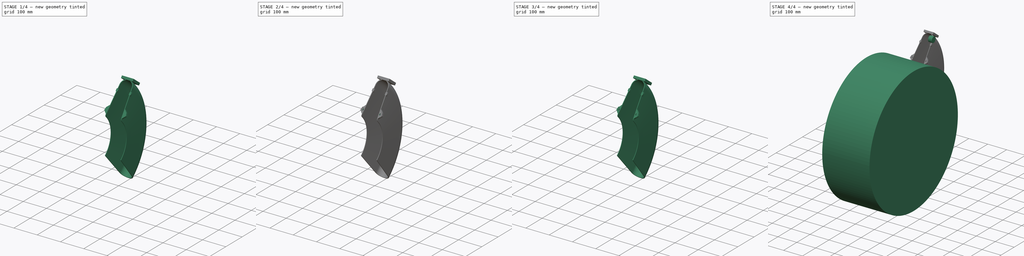
[diagram: build sequence overview — one tinted view per stage of 4, left to right]
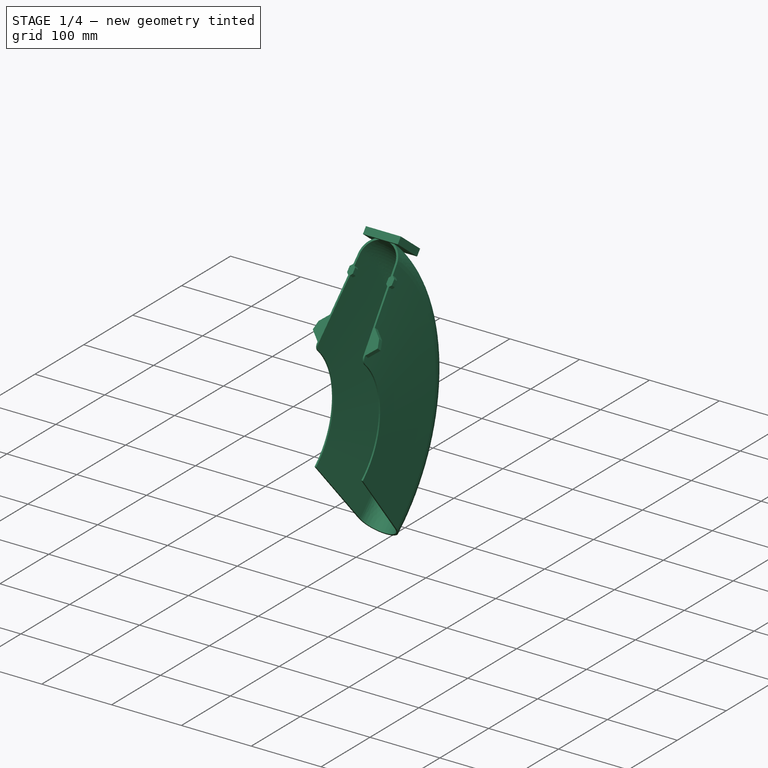
[diagram: stage 1 of 4 — iso view after this stage's code; geometry added in this stage tinted green]
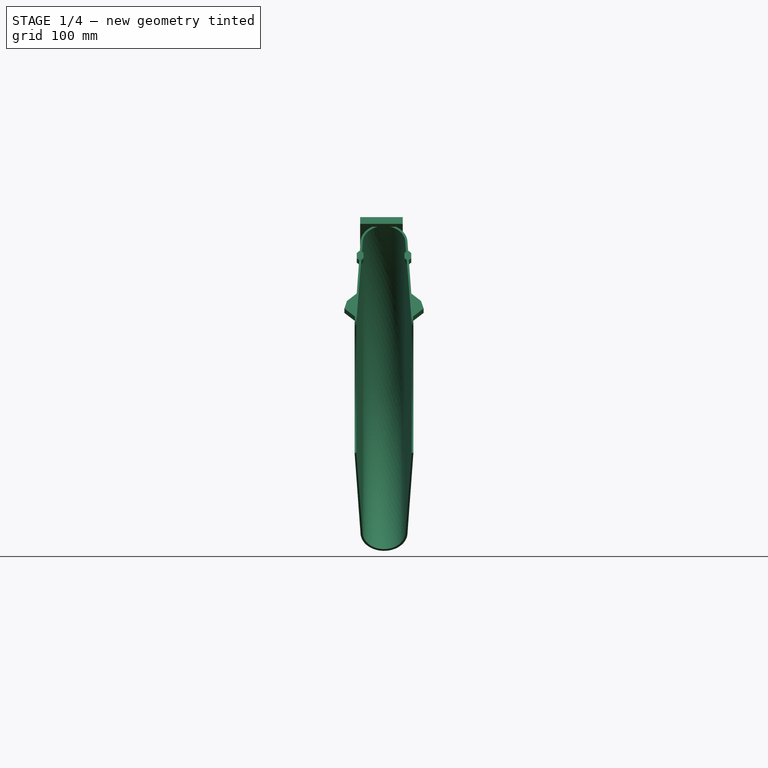
[diagram: stage 1 of 4 — front view after this stage's code; geometry added in this stage tinted green]
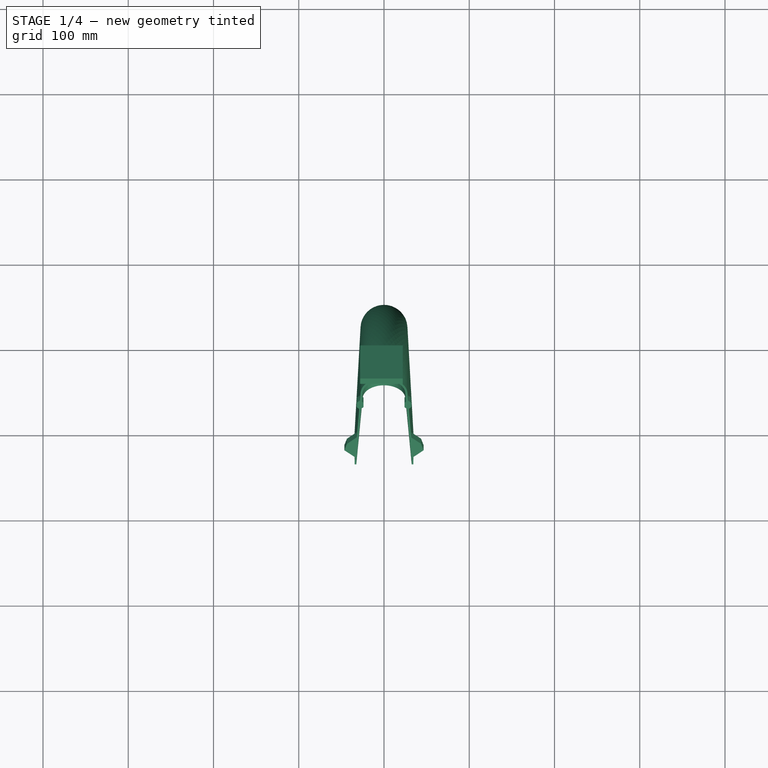
[diagram: stage 1 of 4 — top view after this stage's code; geometry added in this stage tinted green]
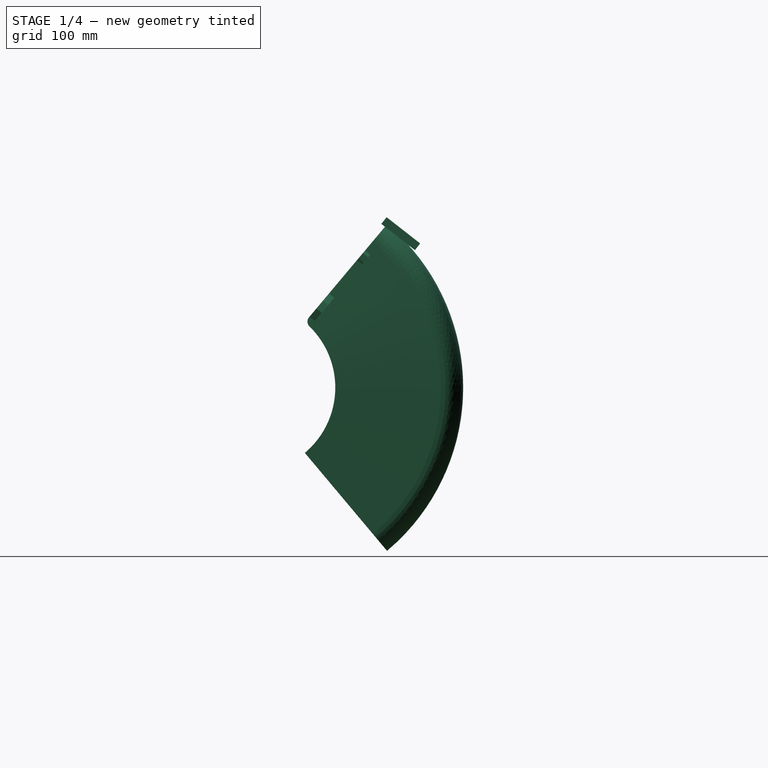
[diagram: stage 1 of 4 — right view after this stage's code; geometry added in this stage tinted green]
FCSTD DOCUMENT  (FreeCAD 0.19R)
Label: Mudguard5
License: All rights reserved
LicenseURL: http://en.wikipedia.org/wiki/All_rights_reserved
objects: Sketcher::SketchObject×6, PartDesign::Fillet×3, PartDesign::Pocket×3, PartDesign::Chamfer×3, Part::Cylinder×2, PartDesign::Revolution×1, PartDesign::ShapeBinder×1, PartDesign::Pad×1, PartDesign::Body×1, Part::Box×1
note: 33 computed .brp shape members not serialized (recipe doc carries the construction recipe); baked Part::Feature solids carry a one-line shape summary decoded from their .brp

FEATURE [Sketcher::SketchObject] Sketch
  FullyConstrained = true
  MapMode = 5
  Support = -> [XY_Plane]
  sketch-geometry (9):
    g0: LineSegment StartX=-38.02 StartY=250 StartZ=0 EndX=36.46 EndY=250 EndZ=0
    g1: ArcOfCircle CenterX=1e-16 CenterY=222.456 CenterZ=0 NormalX=0 NormalY=0 NormalZ=1 AngleXU=0 Radius=27.5438 StartAngle=0.0563879 EndAngle=3.0852
    g2: ArcOfCircle CenterX=0 CenterY=222.257 CenterZ=0 NormalX=0 NormalY=0 NormalZ=1 AngleXU=0 Radius=25.0571 StartAngle=0.0604304 EndAngle=3.08116
    g3: LineSegment StartX=-34.5 StartY=100 StartZ=0 EndX=-27.5 EndY=224.009 EndZ=0
    g4: LineSegment StartX=-32.5 StartY=100 StartZ=0 EndX=-25.0114 EndY=223.77 EndZ=0
    g5: LineSegment StartX=25.0114 StartY=223.77 StartZ=0 EndX=32.5 EndY=100 EndZ=0
    g6: LineSegment StartX=-34.5 StartY=100 StartZ=0 EndX=-32.5 EndY=100 EndZ=0
    g7: LineSegment StartX=32.5 StartY=100 StartZ=0 EndX=34.5 EndY=100 EndZ=0
    g8: LineSegment StartX=34.5 StartY=100 StartZ=0 EndX=27.5 EndY=224.009 EndZ=0
  constraints (24):
    c: Horizontal(g0)
    c: DistanceY(g0) = 250
    c: Tangent(g1,g0)
    c: Symmetric(g1,g1,g-2)
    c: Distance(g0) = 74.48
    c: DistanceX(g0) = 36.46
    c: Tangent(g3,g1) = 1.5708
    c: Coincident(g6,g3)
    c: Coincident(g6,g4)
    c: Distance(g6) = 2
    c: Tangent(g4,g2) = 1.5708
    c: Tangent(g5,g2) = 1.5708
    c: PointOnObject(g2,g-2)
    c: Coincident(g5,g7)
    c: Coincident(g7,g8)
    c: Coincident(g8,g1)
    c: Symmetric(g5,g4,g-2)
    c: Symmetric(g7,g3,g-2)
    c: Horizontal(g7)
    c: Distance(g5,g4) = 65
    c: DistanceY(g7) = 100
    c: Distance(g1,g1) = 55
    c: Distance(g2,g1) = 2.5
    c: DistanceY(g2) = 223.77
FEATURE [PartDesign::Revolution] Revolution
  Angle = 100
  Axis = (1,0,0)
  Base = (0,0,0)
  Midplane = true
  Profile = -> Sketch
  ReferenceAxis = -> Sketch [H_Axis]
FEATURE [PartDesign::ShapeBinder] CopyFusion
  Placement = pos=(0,0,0) rot=(1,0,0;0.785398rad)
  TraceSupport = false
FEATURE [PartDesign::Fillet] Fillet
  Base = -> Revolution [Edge7,Edge19]
  BaseFeature = -> Revolution
  Radius = 8
  SupportTransform = false
FEATURE [PartDesign::Pad] Pad
  BaseFeature = -> Fillet
  Direction = (1,1,1)
  Length = 8
  Length2 = 100
  Profile = -> Sketch002
  Reversed = true
  Type = 0
FEATURE [PartDesign::Body] Body
  Group = -> [Sketch,Revolution,CopyFusion,Fillet,Sketch002,Sketch003,Sketch004,Pad,Pocket,Chamfer,Sketch005,Pocket001,Sketch006,Pocket002,Fillet001,Fillet002,Chamfer001,Chamfer002]
  Origin = -> Origin
  Tip = -> Chamfer002
FEATURE [Part::Box] Box  label="Cube"
  AttacherType = Attacher::AttachEngine3D
  Height = 10
  Length = 50
  Placement = pos=(-28,154,192) rot=(1,0,0;-0.663225rad)
  Width = 50
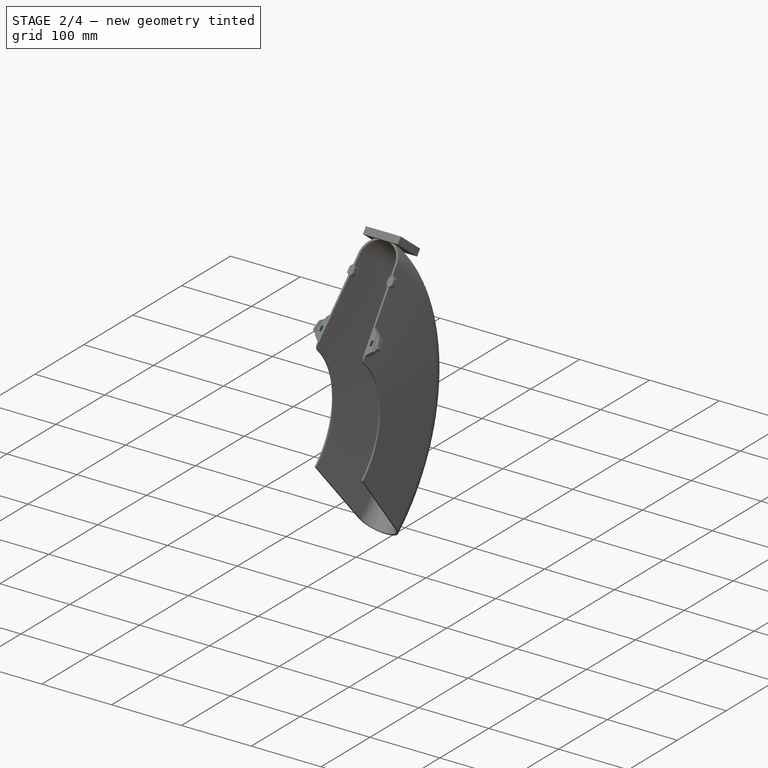
[diagram: stage 2 of 4 — iso view after this stage's code; geometry added in this stage tinted green]
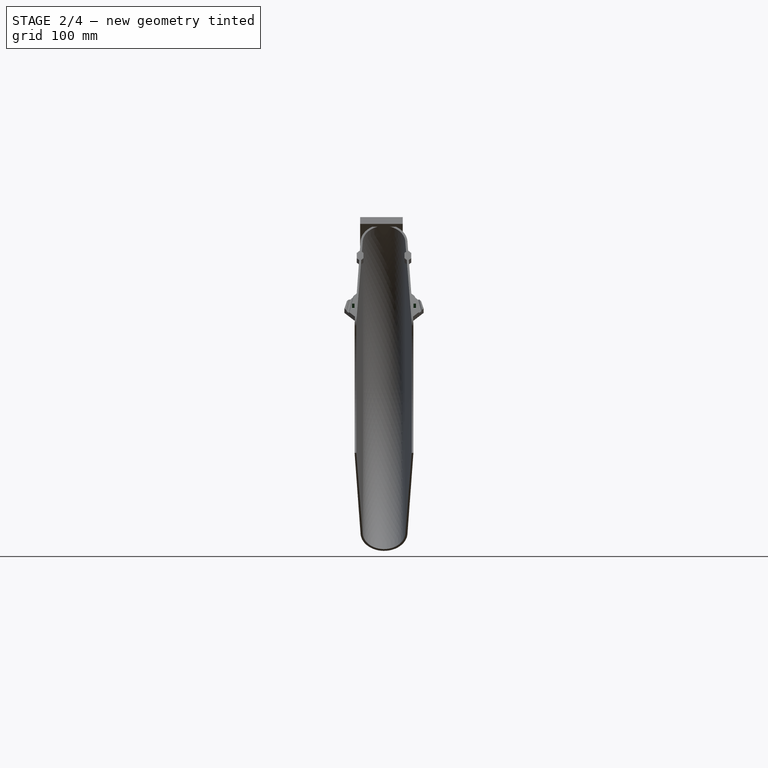
[diagram: stage 2 of 4 — front view after this stage's code; geometry added in this stage tinted green]
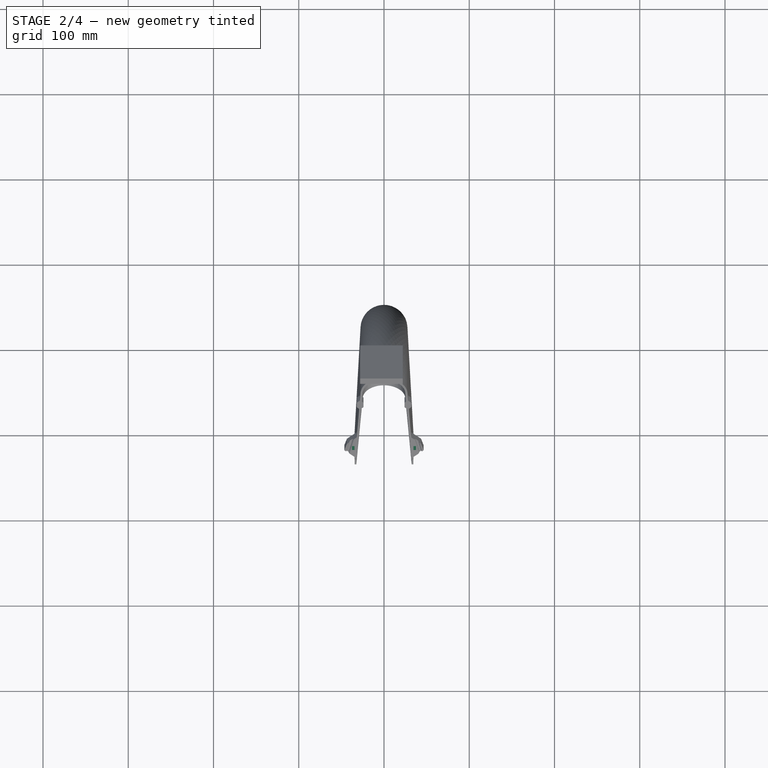
[diagram: stage 2 of 4 — top view after this stage's code; geometry added in this stage tinted green]
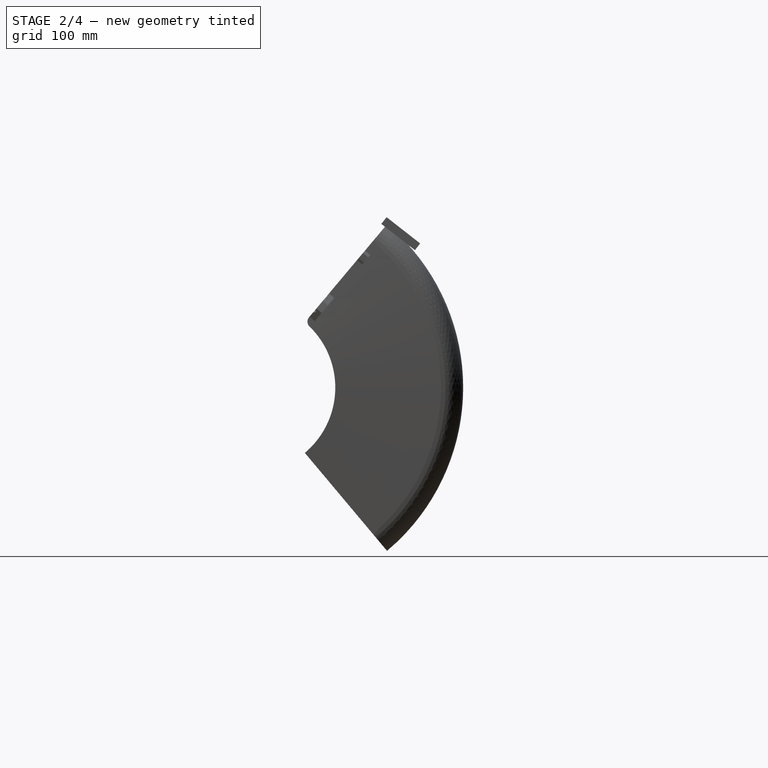
[diagram: stage 2 of 4 — right view after this stage's code; geometry added in this stage tinted green]
FEATURE [Sketcher::SketchObject] Sketch003
  FullyConstrained = true
  MapMode = 5
  Placement = pos=(0,-4.35e-14,3.65e-14) rot=(1,0,0;0.872665rad)
  Support = -> [Pad]
  sketch-geometry (8):
    g0: LineSegment StartX=35 StartY=146.87 StartZ=0 EndX=45 EndY=97.88 EndZ=0
    g1: LineSegment StartX=45 StartY=97.88 StartZ=0 EndX=47.9394 EndY=98.48 EndZ=0
    g2: LineSegment StartX=47.9394 StartY=98.48 StartZ=0 EndX=37.9394 EndY=147.47 EndZ=0
    g3: LineSegment StartX=37.9394 StartY=147.47 StartZ=0 EndX=35 EndY=146.87 EndZ=0
    g4: LineSegment StartX=-47.9394 StartY=98.48 StartZ=0 EndX=-45 EndY=97.88 EndZ=0
    g5: LineSegment StartX=-45 StartY=97.88 StartZ=0 EndX=-35 EndY=146.87 EndZ=0
    g6: LineSegment StartX=-47.9394 StartY=98.48 StartZ=0 EndX=-37.9394 EndY=147.47 EndZ=0
    g7: LineSegment StartX=-37.9394 StartY=147.47 StartZ=0 EndX=-35 EndY=146.87 EndZ=0
  constraints (22):
    c: Coincident(g0,g1)
    c: Coincident(g1,g2)
    c: Coincident(g2,g3)
    c: Coincident(g3,g0)
    c: Coincident(g4,g5)
    c: Equal(g1,g3)
    c: Equal(g0,g2)
    c: Symmetric(g4,g0,g-2)
    c: Perpendicular(g0,g1)
    c: Distance(g3) = 3
    c: Distance(g0,g4) = 90
    c: Coincident(g4,g6)
    c: Coincident(g6,g7)
    c: Coincident(g7,g5)
    c: Equal(g7,g3)
    c: Equal(g6,g5)
    c: Perpendicular(g6,g7)
    c: Symmetric(g0,g5,g-2)
    c: Distance(g2) = 50
    c: Equal(g4,g7)
    c: DistanceY(g0) = 97.88
    c: Distance(g5,g0) = 70
FEATURE [PartDesign::Pocket] Pocket
  BaseFeature = -> Pad
  Length = 2
  Length2 = 100
  Profile = -> Sketch003
  Type = 0
FEATURE [PartDesign::Chamfer] Chamfer
  Angle = 45
  Base = -> Pocket [Edge139,Edge101,Edge142,Edge145]
  BaseFeature = -> Pocket
  ChamferType = 0
  FlipDirection = false
  Size = 1
  Size2 = 1
  SupportTransform = false
FEATURE [Sketcher::SketchObject] Sketch005
  FullyConstrained = false
  MapMode = 5
  Placement = pos=(-3.5e-15,6.12836,-5.1423) rot=(0,0.906308,0.422618;3.14159rad)
  Support = -> [Chamfer]
  sketch-geometry (8):
    g0: LineSegment StartX=-37.5477 StartY=128.579 StartZ=0 EndX=-34.5477 EndY=128.579 EndZ=0
    g1: LineSegment StartX=-34.5477 StartY=128.579 StartZ=0 EndX=-34.5477 EndY=121.579 EndZ=0
    g2: LineSegment StartX=-34.5477 StartY=121.579 StartZ=0 EndX=-37.5477 EndY=121.579 EndZ=0
    g3: LineSegment StartX=-37.5477 StartY=121.579 StartZ=0 EndX=-37.5477 EndY=128.579 EndZ=0
    g4: LineSegment StartX=34.5477 StartY=128.579 StartZ=0 EndX=37.5477 EndY=128.579 EndZ=0
    g5: LineSegment StartX=37.5477 StartY=128.579 StartZ=0 EndX=37.5477 EndY=121.579 EndZ=0
    g6: LineSegment StartX=37.5477 StartY=121.579 StartZ=0 EndX=34.5477 EndY=121.579 EndZ=0
    g7: LineSegment StartX=34.5477 StartY=121.579 StartZ=0 EndX=34.5477 EndY=128.579 EndZ=0
  constraints (21):
    c: Coincident(g0,g1)
    c: Coincident(g1,g2)
    c: Coincident(g2,g3)
    c: Coincident(g3,g0)
    c: Horizontal(g0)
    c: Horizontal(g2)
    c: Vertical(g1)
    c: Vertical(g3)
    c: Coincident(g4,g5)
    c: Coincident(g5,g6)
    c: Coincident(g6,g7)
    c: Coincident(g7,g4)
    c: Horizontal(g4)
    c: Horizontal(g6)
    c: Vertical(g5)
    c: Vertical(g7)
    c: Distance(g4) = 3
    c: Distance(g5) = 7
    c: Equal(g4,g0)
    c: Symmetric(g0,g4,g-2)
    c: Equal(g1,g5)
FEATURE [PartDesign::Pocket] Pocket001
  BaseFeature = -> Chamfer
  Length = 5
  Length2 = 100
  Profile = -> Sketch005
  Type = 1
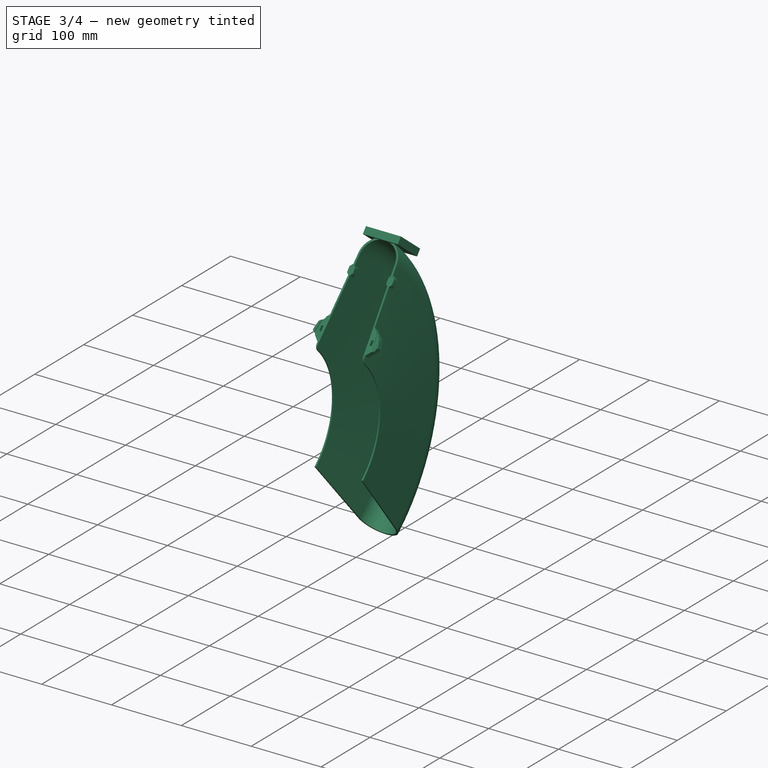
[diagram: stage 3 of 4 — iso view after this stage's code; geometry added in this stage tinted green]
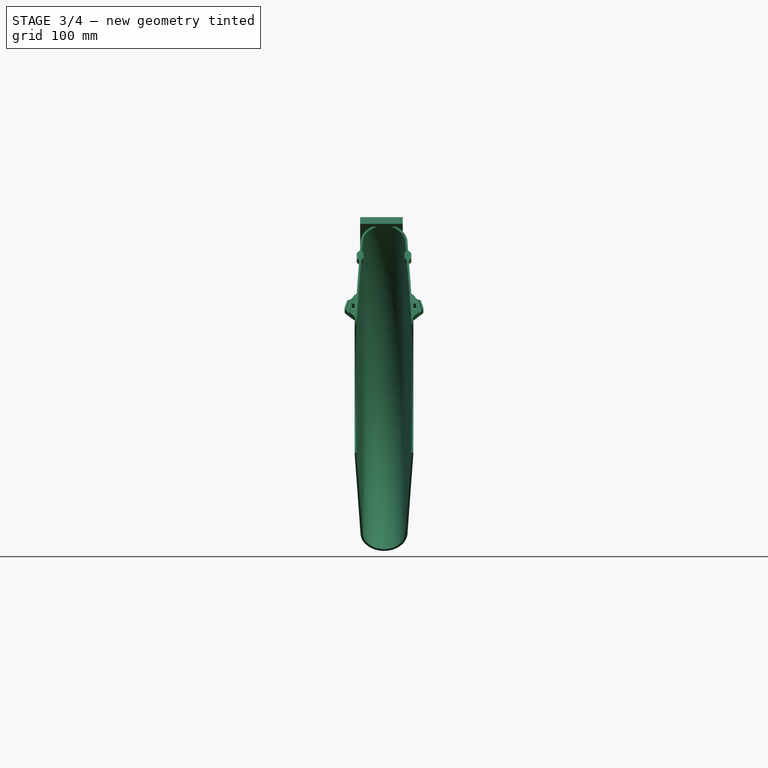
[diagram: stage 3 of 4 — front view after this stage's code; geometry added in this stage tinted green]
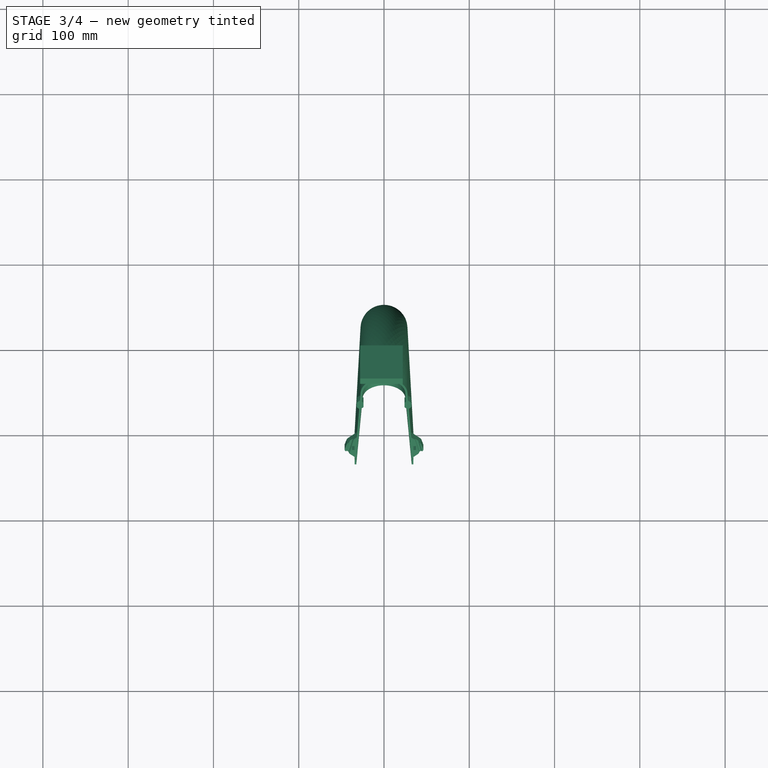
[diagram: stage 3 of 4 — top view after this stage's code; geometry added in this stage tinted green]
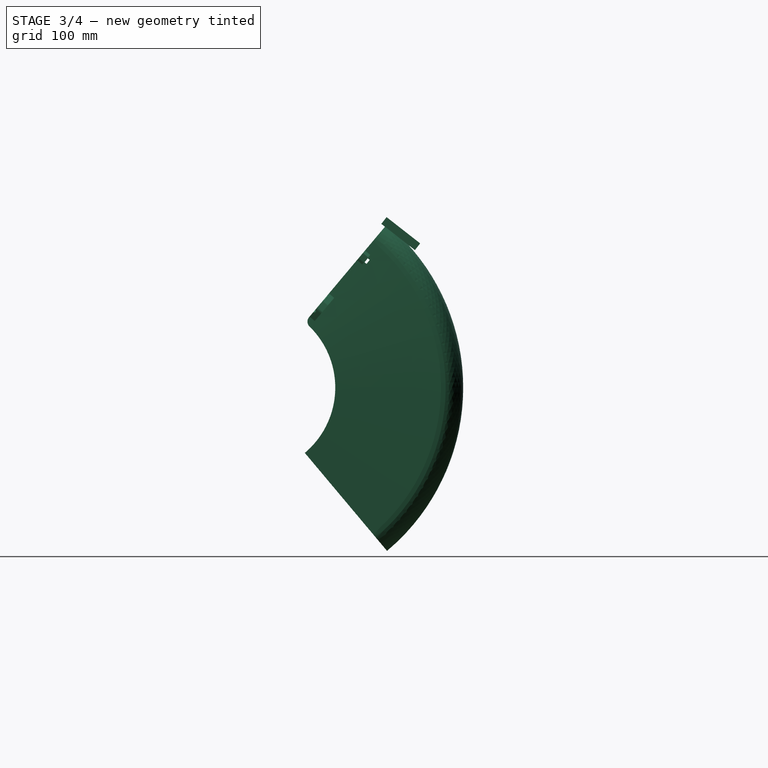
[diagram: stage 3 of 4 — right view after this stage's code; geometry added in this stage tinted green]
FEATURE [Sketcher::SketchObject] Sketch006
  FullyConstrained = false
  MapMode = 5
  Placement = pos=(-32,0,0) rot=(0.57735,-0.57735,-0.57735;2.0944rad)
  Support = -> [Pocket001]
  sketch-geometry (4):
    g0: LineSegment StartX=-140.408 StartY=149.728 StartZ=0 EndX=-136.658 EndY=145.045 EndZ=0
    g1: LineSegment StartX=-136.658 StartY=145.045 StartZ=0 EndX=-134.316 EndY=146.92 EndZ=0
    g2: LineSegment StartX=-134.316 StartY=146.92 StartZ=0 EndX=-138.067 EndY=151.603 EndZ=0
    g3: LineSegment StartX=-138.067 StartY=151.603 StartZ=0 EndX=-140.408 EndY=149.728 EndZ=0
  constraints (9):
    c: Coincident(g0,g1)
    c: Coincident(g1,g2)
    c: Coincident(g2,g3)
    c: Coincident(g3,g0)
    c: Equal(g1,g3)
    c: Perpendicular(g1,g0)
    c: Equal(g2,g0)
    c: Distance(g2) = 6
    c: Distance(g3) = 3
FEATURE [PartDesign::Pocket] Pocket002
  BaseFeature = -> Pocket001
  Length = 5
  Length2 = 100
  Profile = -> Sketch006
  Type = 1
FEATURE [PartDesign::Fillet] Fillet001
  Base = -> Pocket002 [Edge46,Edge7,Edge169,Edge149]
  BaseFeature = -> Pocket002
  Radius = 3
  SupportTransform = false
FEATURE [PartDesign::Fillet] Fillet002
  Base = -> Fillet001 [Edge92,Edge96,Edge184,Edge171]
  BaseFeature = -> Fillet001
  Radius = 1
  SupportTransform = false
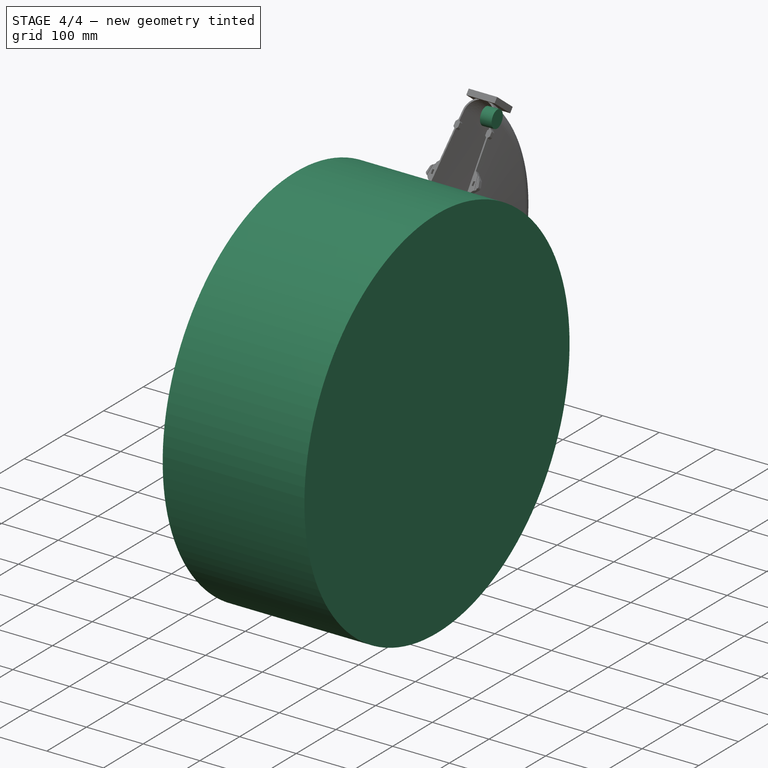
[diagram: stage 4 of 4 — iso view after this stage's code; geometry added in this stage tinted green]
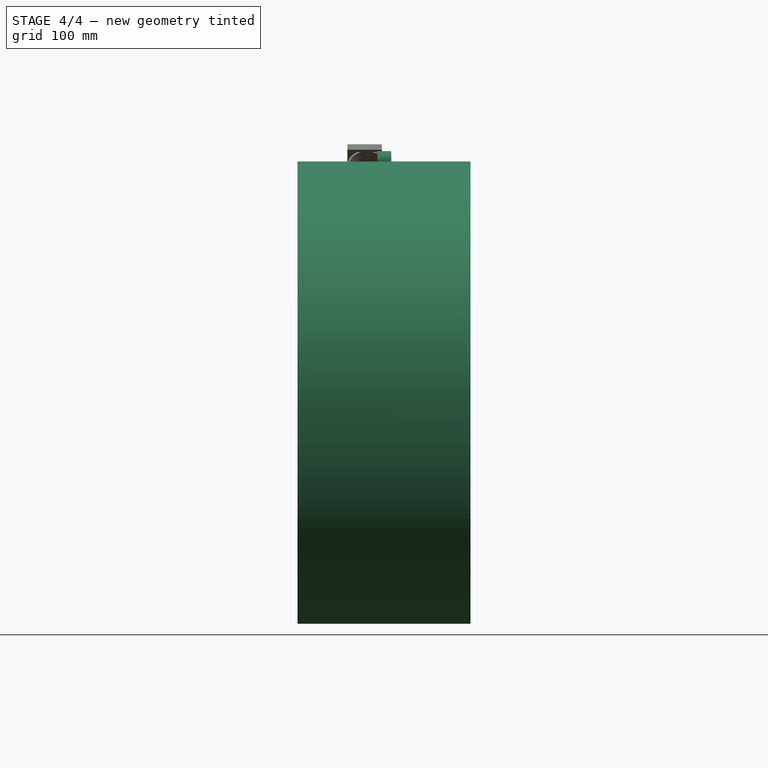
[diagram: stage 4 of 4 — front view after this stage's code; geometry added in this stage tinted green]
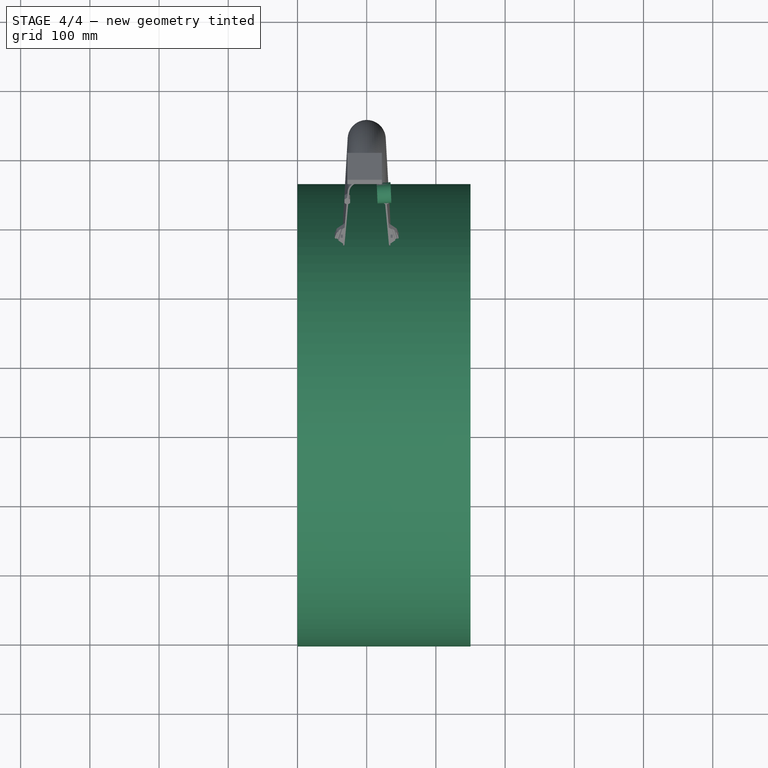
[diagram: stage 4 of 4 — top view after this stage's code; geometry added in this stage tinted green]
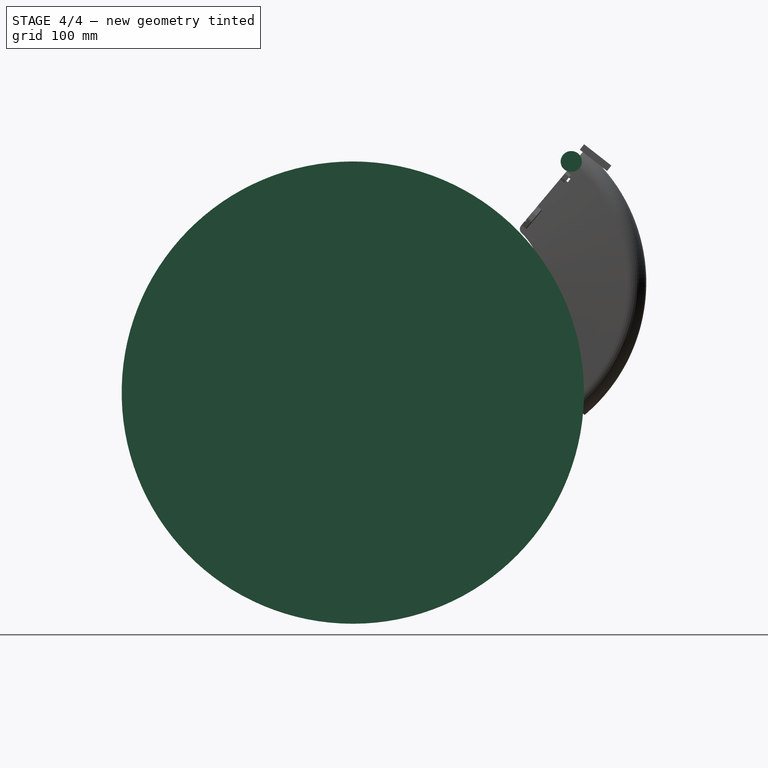
[diagram: stage 4 of 4 — right view after this stage's code; geometry added in this stage tinted green]
FEATURE [Sketcher::SketchObject] Sketch002
  FullyConstrained = false
  MapMode = 5
  Placement = pos=(0,0,0) rot=(1,0,0;0.872665rad)
  Support = -> [Fillet]
  sketch-geometry (21):
    g0: LineSegment StartX=-29.785 StartY=256.106 StartZ=0 EndX=29.785 EndY=256.106 EndZ=0
    g1: LineSegment StartX=-43.3942 StartY=132.698 StartZ=0 EndX=-46.5 EndY=121.106 EndZ=0
    g2: LineSegment StartX=-46.5 StartY=121.106 StartZ=0 EndX=-33.2488 EndY=107.855 EndZ=0
    g3: LineSegment StartX=-33.2488 StartY=107.855 StartZ=0 EndX=-31 EndY=145.092 EndZ=0
    g4: LineSegment StartX=-31 StartY=145.092 StartZ=0 EndX=-43.3942 EndY=132.698 EndZ=0
    g5: LineSegment StartX=43.3942 StartY=132.698 StartZ=0 EndX=46.5 EndY=121.106 EndZ=0
    g6: LineSegment StartX=46.5 StartY=121.106 StartZ=0 EndX=33.2488 EndY=107.855 EndZ=0
    g7: LineSegment StartX=33.2488 StartY=107.855 StartZ=0 EndX=31 EndY=145.092 EndZ=0
    g8: LineSegment StartX=31 StartY=145.092 StartZ=0 EndX=43.3942 EndY=132.698 EndZ=0
    g9: LineSegment StartX=28 StartY=194.106 StartZ=0 EndX=32 EndY=198.106 EndZ=0
    g10: LineSegment StartX=32 StartY=198.106 StartZ=0 EndX=32 EndY=206.106 EndZ=0
    g11: LineSegment StartX=32 StartY=206.106 StartZ=0 EndX=28 EndY=210.106 EndZ=0
    g12: LineSegment StartX=28 StartY=210.106 StartZ=0 EndX=24 EndY=206.106 EndZ=0
    g13: LineSegment StartX=24 StartY=206.106 StartZ=0 EndX=24 EndY=198.106 EndZ=0
    g14: LineSegment StartX=24 StartY=198.106 StartZ=0 EndX=28 EndY=194.106 EndZ=0
    g15: LineSegment StartX=-28 StartY=194.106 StartZ=0 EndX=-24 EndY=198.106 EndZ=0
    g16: LineSegment StartX=-24 StartY=198.106 StartZ=0 EndX=-24 EndY=206.106 EndZ=0
    g17: LineSegment StartX=-24 StartY=206.106 StartZ=0 EndX=-28 EndY=210.106 EndZ=0
    g18: LineSegment StartX=-28 StartY=210.106 StartZ=0 EndX=-32 EndY=206.106 EndZ=0
    g19: LineSegment StartX=-32 StartY=206.106 StartZ=0 EndX=-32 EndY=198.106 EndZ=0
    g20: LineSegment StartX=-32 StartY=198.106 StartZ=0 EndX=-28 EndY=194.106 EndZ=0
  constraints (55):
    c: Coincident(g1,g2)
    c: Coincident(g2,g3)
    c: Coincident(g3,g4)
    c: Coincident(g4,g1)
    c: Coincident(g5,g6)
    c: Coincident(g6,g7)
    c: Coincident(g7,g8)
    c: Coincident(g8,g5)
    c: Symmetric(g7,g3,g-2)
    c: Symmetric(g6,g2,g-2)
    c: Equal(g5,g1)
    c: Symmetric(g5,g1,g-2)
    c: Equal(g2,g6)
    c: Distance(g5,g1) = 93
    c: Angle(g6) = -2.35619
    c: Coincident(g9,g10)
    c: Vertical(g10)
    c: Coincident(g10,g11)
    c: Coincident(g11,g12)
    c: Coincident(g12,g13)
    c: Vertical(g13)
    c: Coincident(g13,g14)
    c: Coincident(g14,g9)
    c: Coincident(g15,g16)
    c: Coincident(g16,g17)
    c: Coincident(g17,g18)
    c: Coincident(g18,g19)
    c: Coincident(g19,g20)
    c: Coincident(g20,g15)
    c: Distance(g5) = 12
    c: Angle(g5) = -1.309
    c: Symmetric(g0,g0,g-2)
    c: Distance(g0) = 59.57
    c: Angle(g8) = -0.785398
    c: Distance(g7,g3) = 62
    c: Distance(g9,g13) = 8
    c: Symmetric(g13,g15,g-2)
    c: Symmetric(g12,g16,g-2)
    c: Symmetric(g9,g19,g-2)
    c: Symmetric(g10,g18,g-2)
    c: Equal(g13,g19)
    c: Distance(g10) = 8
    c: Angle(g12,g11) = 1.5708
    c: Equal(g18,g12)
    c: Equal(g20,g14)
    c: Equal(g15,g9)
    c: Equal(g17,g11)
    c: Angle(g15,g20) = 1.5708
    c: Equal(g20,g15)
    c: Distance(g10,g0) = 50
    c: DistanceY(g12,g10) = 0
    c: Distance(g9,g19) = 64
    c: Distance(g5,g0) = 135
    c: Distance(g2) = 18.74
    c: Equal(g17,g18)
FEATURE [Sketcher::SketchObject] Sketch004
  FullyConstrained = false
  MapMode = 5
  Placement = pos=(-31,0,0) rot=(0.57735,-0.57735,-0.57735;2.0944rad)
  sketch-geometry (8):
    g0: LineSegment StartX=-122.627 StartY=164.31 StartZ=0 EndX=-119.228 EndY=159.366 EndZ=0
    g1: LineSegment StartX=-119.228 StartY=159.366 StartZ=0 EndX=-116.756 EndY=161.065 EndZ=0
    g2: LineSegment StartX=-116.756 StartY=161.065 StartZ=0 EndX=-120.154 EndY=166.009 EndZ=0
    g3: LineSegment StartX=-120.154 StartY=166.009 StartZ=0 EndX=-122.627 EndY=164.31 EndZ=0
    g4: LineSegment StartX=-76.9755 StartY=93.1865 StartZ=0 EndX=-79.4599 EndY=91.5049 EndZ=0
    g5: LineSegment StartX=-79.4599 StartY=91.5049 StartZ=0 EndX=-82.8231 EndY=96.4737 EndZ=0
    g6: LineSegment StartX=-82.8231 StartY=96.4737 StartZ=0 EndX=-80.3387 EndY=98.1553 EndZ=0
    g7: LineSegment StartX=-80.3387 StartY=98.1553 StartZ=0 EndX=-76.9755 EndY=93.1865 EndZ=0
  constraints (18):
    c: Coincident(g0,g1)
    c: Coincident(g1,g2)
    c: Coincident(g2,g3)
    c: Coincident(g3,g0)
    c: Coincident(g4,g5)
    c: Coincident(g5,g6)
    c: Coincident(g6,g7)
    c: Coincident(g7,g4)
    c: Equal(g1,g3)
    c: Equal(g3,g6)
    c: Equal(g6,g4)
    c: Distance(g6) = 3
    c: Perpendicular(g0,g3)
    c: Equal(g2,g0)
    c: Equal(g0,g5)
    c: Equal(g5,g7)
    c: Distance(g0) = 6
    c: Perpendicular(g5,g4)
FEATURE [Part::Cylinder] Cylinder001
  Angle = 360
  AttacherType = Attacher::AttachEngine3D
  Height = 250
  Placement = pos=(-100,-174,-159) rot=(0,1,0;1.5708rad)
  Radius = 334
FEATURE [Part::Cylinder] Cylinder
  Angle = 360
  AttacherType = Attacher::AttachEngine3D
  Height = 20
  Placement = pos=(35,142,175) rot=(0,-0.999201,0.039968;1.5708rad)
  Radius = 15
FEATURE [PartDesign::Chamfer] Chamfer001
  Angle = 45
  Base = -> Fillet002 [Edge19]
  BaseFeature = -> Fillet002
  ChamferType = 0
  FlipDirection = false
  Size = 1
  Size2 = 1
  SupportTransform = false
FEATURE [PartDesign::Chamfer] Chamfer002
  Angle = 45
  Base = -> Chamfer001 [Edge118]
  BaseFeature = -> Chamfer001
  ChamferType = 0
  FlipDirection = false
  Size = 1
  Size2 = 1
  SupportTransform = false
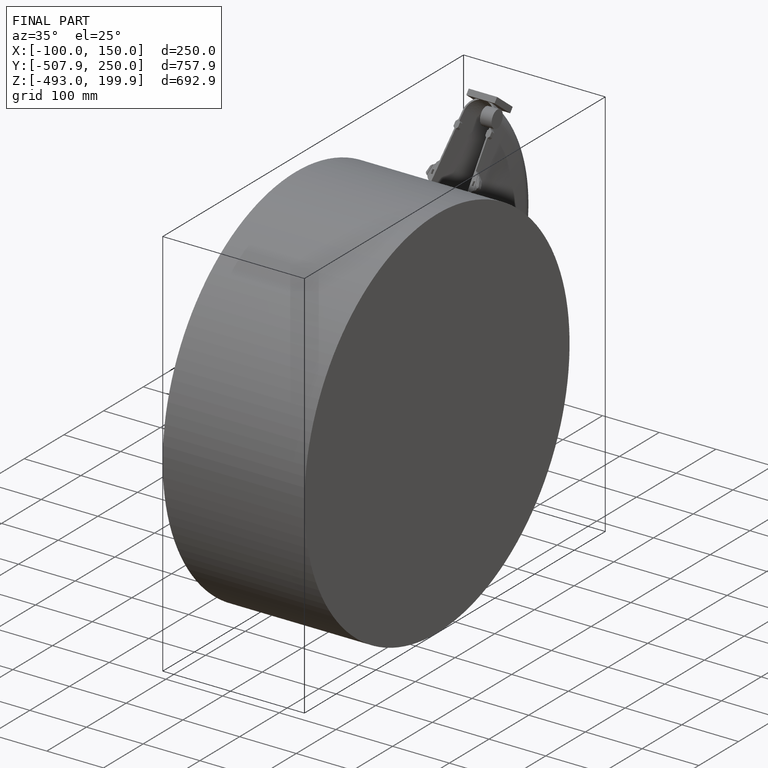
[diagram: finished part — iso view with bounding-box wireframe]
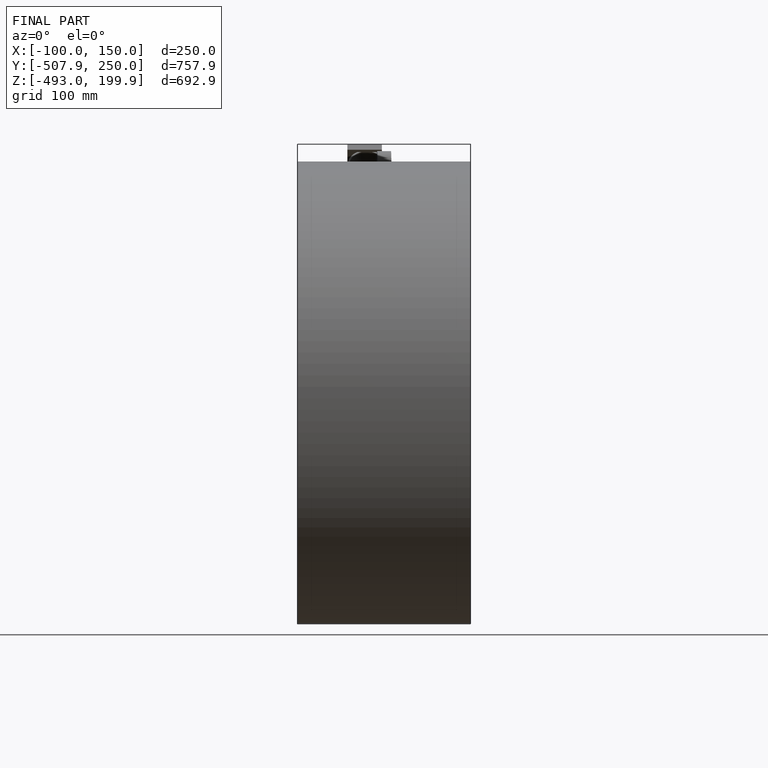
[diagram: finished part — front view with bounding-box wireframe]
